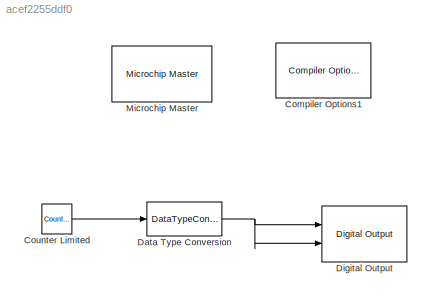
MODEL slx_acef2255ddf0
KIND model
CONFIG AbsTol = auto
CONFIG FixedStep = 0.001
CONFIG MaxStep = auto
CONFIG MinStep = auto
CONFIG RelTol = 1e-3
CONFIG SampleTimeConstraint = Unconstrained
CONFIG Solver = FixedStepDiscrete
CONFIG SolverMode = Auto
CONFIG SolverName = FixedStepDiscrete
CONFIG StartTime = 0.0
CONFIG StopTime = 10.0
BLOCK [Reference] Compiler Options1  REF=MCHP_Blockset/System Configuration/Compiler Options
  AssemblyListing = on
  COMP_LIST = Dynamic Options
  COMP_LIST_TXT = xc16 - v1.34
  DEBUG_INFO = on
  HEAP_SIZE = 0
  LATEST_CMPLR = on
  MCHP_MASTERLINK = MPLAB_device_block/Microchip Master
  MCHP_MULTITHREAD_COMPILATION = off
  MCODE = is less than 32768 (faster)
  MCONST = in code memory
  MDATA = Use only memory below address 8192 (faster)
  MPLAB_LINKLIB = default
  MPLAB_LINKLIB1 = default
  MSCALAR = Use only memory below address 8192 (faster)
  OMF = elf
  OMIT_FRAME_POINTER = off
  OPTIMIZATION_LEVEL = 3
  PROCEDURAL_ABSTRACTION = off
  Ports = []
  Priority = 1
  ProduceHexOutput = off
  SourceBlock = MCHP_Blockset/System Configuration/Compiler Options
  UNROLL_LOOPS = off
  USE_64BIT_DOUBLE = off
BLOCK [Reference] Counter Limited  REF=simulink/Sources/Counter
Limited
  Ports = [0, 1]
  SourceBlock = simulink/Sources/Counter\nLimited
  SourceType = Counter Limited
  tsamp = 0.5
  uplimit = 1
BLOCK [DataTypeConversion] Data Type Conversion
  RndMeth = Floor
  SaturateOnIntegerOverflow = off
BLOCK [Reference] Digital Output  REF=MCHP_Blockset/Digital IO/Digital Output
  MCHP_MASTERLINK = MPLAB_device_block/Microchip Master
  ORDERING = None
  PACK = off
  PIN = 2 3
  PORT = Dynamic Options
  PORT_TXT = A   [ 0 : 4 ]
  Ports = [2]
  READPREVIOUS = off
  SIMULTANEOUS = off
  SampleTime = -1
  SourceBlock = MCHP_Blockset/Digital IO/Digital Output
BLOCK [Reference] Microchip Master  REF=MCHP_Blockset/System Configuration/Microchip Master
  ACTIV_PLL = off
  ACTIV_PLL_spd = off
  AIVTDIS = Disable Alternate Vector Table
  ALTADREF = Not used
  ALTCMPI = Not used
  ALTCVREF = Not used
  ALTI2C = I2C mapped to SDA1/SCL1 pins
  ALTI2C1 = I2C1 mapped to SDA1/SCL1 pins
  ALTI2C2 = I2C2 mapped to SDA2/SCL2 pins
  ALTPMP = Not used
  ALTQIO = Not used
  ALTRB6 = Not used
  ALTSS1 = Not used
  ALTVREF = Not used
  APL = Aux Flash Code protect is disabled
  APLK = Aux Flash Write Protection or Code Protection is Enabled
  ATMOD8 = Not used
  AWRP = Auxiliary program memory is not write-protected
  BACKBUG = Not used
  BKBUG = Not used
  BODENV = 2.7V
  BOOTISA = Boot code and Exception code is MIPS32
  BOREN = Disable
  BOREN0 = Enabled
  BOREN1 = Not used
  BORV = Not used
  BSEN = Not used
  BSLIM = Not used
  BSS = No Boot program Flash segment
  BSS2 = No Boot Segment
  BTMODE = Not used
  BTSWP = Not used
  BUSYFLAG = Dynamic Options
  BUSYFLAG_TXT = None
  BWP = Not used
  BWRP = Boot Segment may be written
  CMPPOL0 = Not used
  CMPPOL1 = Not used
  COE = Not used
  CP = Protection Disabled
  CSEQ = Not used
  CSS = No Protection (other than CWRP)
  CTXT1 = Not Assigned
  CTXT2 = Not Assigned
  CWRP = Configuration Segment may be written
  DBCC = Not used
  DBGPER = Allow CPU access to all permission regions
  DEBUG = Debugger is disabled
  DFMCY = Not used
  DISUVREG = Not used
  DMTCNT = 2^8 (256)
  DMTEN = Dead Man Timer is Disabled and can be enabled by software
  DMTINTV = Window/Interval value is 127/128 counter value
  DMTIVT = Not used
  DSBOREN = Enable ZPBOR during Deep Sleep Mode
  DSLPBOR = Not used
  DSSWEN = Not used
  DSWDTEN = Enable DSWDT during Deep Sleep Mode
  DSWDTOSC = Select LPRC as DSWDT Reference clock
  DSWDTPS = 1:2^36
  EBS = No Boot EEPROM
  EJTAGBEN = Normal EJTAG functionality
  ESS = No Segment Data EEPROM
  EXTDDRSIZE = Not used
  FCANIO = Not used
  FCKSM = Both Clock switching and Fail-safe Clock Monitor are disabled
  FCKSMEN = Sw Disabled; Mon Disabled
  FDMTEN = Deadman Timer is disabled
  FECCCON = ECC and Dynamic ECC are disabled (ECCCON bits are writable)
  FETHIO = Default Ethernet I/O
  FMIIEN = MII Enabled
  FNOSC = Internal Fast RC (FRC)
  FOS = Primary Oscillator
  FOSFPR = HS3 w/PLL 16x
  FPBDIV = Not used
  FPLLICLK = FRC is input to the System PLL
  FPLLIDIV = 8x Divider
  FPLLMUL = Not used
  FPLLMULT = PLL Multiply by 128
  FPLLODIV = 32x Divider
  FPLLRNG = 34-68 MHz Input
  FPR = ECIO w/ PLL 16x
  FPWRT = 128ms
  FRANGE = High Range
  FSLEEP = Flash is powered down when the device is in Sleep mode
  FSOSCEN = Enable SOSC
  FSRSSEL = Not used
  FUSBIDIO = Controlled by the USB Module
  FVBUSONIO = Not used
  FWDTEN = Disable
  FWDTWINSZ = Window size is 25%
  FWPSA = 1:512
  FWPSA0 = 1:128
  FWPSB = 1:16
  GCP = General Segment Code protect is Disabled
  GSS = General Segment Code protect is Disabled
  GSS0 = Not used
  GSSK = General Segment Write Protection or Code Protection is Enabled
  GWRP = General Segment may be written
  HPOL = PWM module high side output pins have active-high output polarity
  HYST0 = Not used
  HYST1 = Not used
  I2C1SEL = Not used
  I2C2SEL = Not used
  ICESEL = Communicate on PGEC1/PGED1
  ICS = Communicate on PGEC1 and PGED1
  IESO = Start up with FRC; then switch
  IOL1WAY = Allow only one reconfiguration
  JTAGEN = Disable
  LPCFG = Not used
  LPOL = PWM module low side output pins have active-high output polarity
  LPRCSEL = Not used
  LVRCFG = Not used
  MCHPVAR = MCHP.fcy.MIPS=3685000;MCHP.fcy.SYSCLK=3685000;MCHP.fcy.ADC=3685000;MCHP.fcy.Comparator=3685000;MCHP.fcy.I2C=3685000;MCHP.fcy.SPI=3685000;MCHP.fcy.UART=3685000;MCHP.fcy.Timers=3685000;MCHP.fcy.OC=3685000;MCHP.fcy.IC=3685000;MCHP.fcy.Ports=3685000;MCHP.fcy.QEI=3685000;MCHP.PowerSave=0;MCHP.TimeStepFactor=1;MCHP.TimeStep_Timer=1;MCHP.NTIMERS=5;MCHP.id.name='33EP128MC502';MCHP.id.N=reshape([33 128 502...<+10379ch>
  MCHP_CRC = 5063722
  MCHP_PLLRegisters = [-1 -1 -1 -1]
  MCHP_TIMER_REQUEST = {Time Step}{TS}0:2:3:1:[]:3685;
  MCHP_TIMER_RESULT = [1 3684 ]
  MCLRE = Enabled
  MIPS = 3.6850000000000001 * 1e6
  MIPS_DESIRED = 7370000
  MIPS_DESIRED_spd = 7370000
  ON = Not used
  OSCILLATOR_SELECT = Internal Fast RC (FRC)
  OSCILLATOR_SELECT_spd = Internal Fast RC (FRC)
  OSCIOFCN = Not used
  OSCIOFNC = OSC2 is clock output
  PGL1WAY = Allow only one reconfiguration
  PICREF = 33EP128MC502
  PLL96MHZ = Not used
  PLLDIV = Not used
  PLLKEN = Clock switch to PLL source will wait until the PLL lock signal is valid.
  PLLSS = Not used
  PLL_96MHZ = Not used
  PMDL1WAY = Allow only one reconfiguration
  POSCBOOST = Boost the kick start of the oscillator
  POSCFREQ = Not used
  POSCGAIN = 2x gain setting
  POSCMD = Primary Oscillator Disabled
  POSCMOD = Primary osc disabled
  POWERSAVE = off
  PWMLOCK = PWM registers may be written without key sequence
  PWMPIN = PWM module pins controlled by PORT register at device Reset
  PWP = Not used
  PWRTEN = Not used
  Ports = []
  Priority = 1
  QUARTZ = 7.37e+06
  QUARTZ_spd = 7.37e+06
  RBS = No Boot RAM
  RES = Not used
  RES1 = Not used
  RES2 = Not used
  RESERVED1 = Not used
  RETCFG = Not used
  RSS = No Secure RAM
  RSTPRI = Device will obtain reset instruction from Primary flash
  RTCBAT = Not used
  RTCOSC = Not used
  SEQNUM = Not used
  SMCLR = MCLR pin generates a normal system Reset
  SOSCBOOST = Boost the kick start of the oscillator
  SOSCGAIN = 2x gain setting
  SOSCSEL = Not used
  SOSCSRC = Not used
  SSS = No Secure Segment
  SWRP = Secure segment may be written
  SourceBlock = MCHP_Blockset/System Configuration/Microchip Master
  TEMP = Not used
  TIMESTEP_REF = Timer  ( 0.001s )
  TRCEN = Trace features in the CPU are enabled
  TSEQ = Not used
  UPLLEN = USB PLL is enabled
  UPLLFSEL = USB PLL input is 24 MHz
  UPLLIDIV = Not used
  USERID = Not used
  VBTBOR = Not used
  WDT = Disable
  WDTCLK = Not used
  WDTCMX = Not used
  WDTEN = Not used
  WDTPOST = 1:32768
  WDTPRE = 1:128
  WDTPS = 1:1048576
  WDTSPGM = WDT stops during Flash programming
  WDTWIN = WDT Window is 25% of WDT period
  WINDIS = Watchdog Timer in Non-Window mode
  WPCFG = Not used
  WPDIS = Not used
  WPEND = Not used
  WPFP = Not used
  WUTSEL = Not used
  WWDTEN = Non-Window mode
  nSEQNUM = Not used
LINE Counter Limited:1 -> Data Type Conversion:1
NET Data Type Conversion:1 -> Digital Output:1, Digital Output:2
note: NET lines group one-source signal fan-out (src -> all destinations, sorted); 1:1 wires keep LINE
